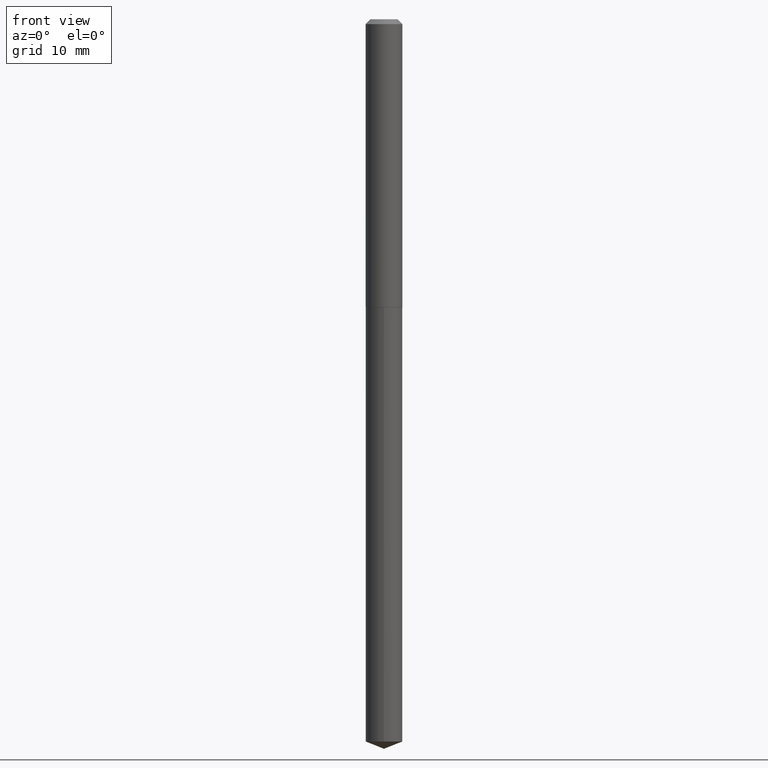
[diagram: clean part render]
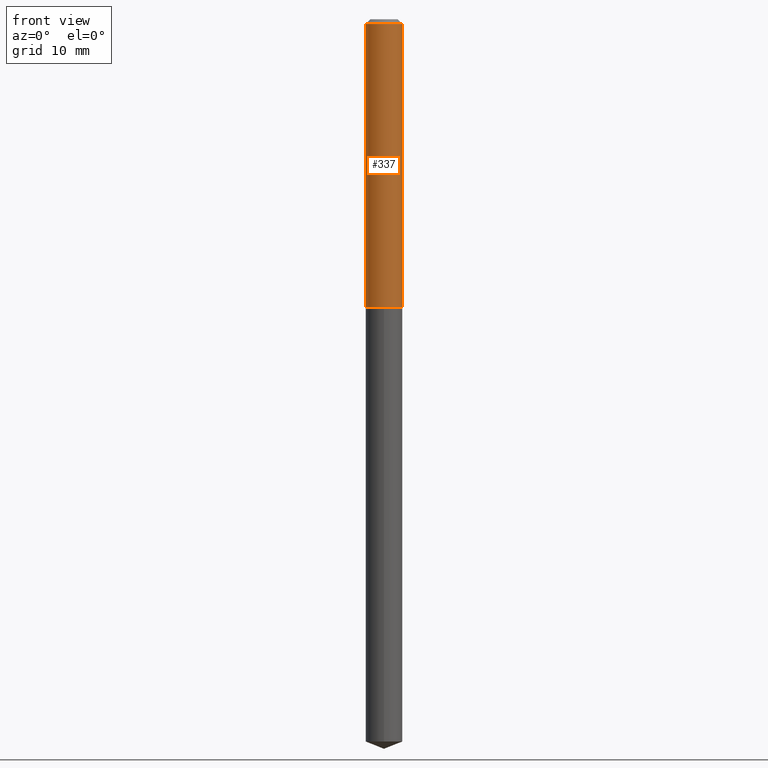
[diagram: same view with one face highlighted and labeled with its STEP entity id]
A machine part, front view. The second image highlights one B-rep face of the part: STEP entity #337.
In plain terms, the highlighted cylindrical surface (edge-blend (fillet) strip) has radius 2.9997 mm, axis along (-0, 0, 1).
Its self-contained STEP definition (entity closure, byte-faithful):
#6 = AXIS2_PLACEMENT_3D ( 'NONE', #117, #126, #242 ) ;
#24 = VERTEX_POINT ( 'NONE', #349 ) ;
#26 = ORIENTED_EDGE ( 'NONE', *, *, #341, .F. ) ;
#34 = DIRECTION ( 'NONE',  ( 1.000000000000000000, -6.982962677686266711E-15, 0.000000000000000000 ) ) ;
#48 = AXIS2_PLACEMENT_3D ( 'NONE', #183, #94, #34 ) ;
#67 = DIRECTION ( 'NONE',  ( 1.000000000000000000, -6.982962677686266711E-15, 4.876176775795935793E-29 ) ) ;
#82 = CARTESIAN_POINT ( 'NONE',  ( -0.1180999999999999966, -2.444674515282768295E-15, -0.03125000000000021511 ) ) ;
#90 = FACE_OUTER_BOUND ( 'NONE', #111, .T. ) ;
#94 = DIRECTION ( 'NONE',  ( -2.445468806185136597E-29, 3.491481338843145583E-15, 1.000000000000000000 ) ) ;
#103 = AXIS2_PLACEMENT_3D ( 'NONE', #204, #332, #67 ) ;
#106 = VERTEX_POINT ( 'NONE', #82 ) ;
#111 = EDGE_LOOP ( 'NONE', ( #191, #347, #381, #26 ) ) ;
#117 = CARTESIAN_POINT ( 'NONE',  ( 4.523628197681264126E-29, -6.458542180592047827E-15, -1.849799999999999223 ) ) ;
#121 = DIRECTION ( 'NONE',  ( -2.445468806185136877E-29, 3.491481338843145188E-15, 1.000000000000000000 ) ) ;
#126 = DIRECTION ( 'NONE',  ( -2.445468806185136597E-29, 3.491481338843145583E-15, 1.000000000000000000 ) ) ;
#130 = LINE ( 'NONE', #364, #223 ) ;
#132 = VERTEX_POINT ( 'NONE', #259 ) ;
#141 = CIRCLE ( 'NONE', #48, 0.1180999999999999966 ) ;
#164 = EDGE_CURVE ( 'NONE', #190, #132, #235, .T. ) ;
#183 = CARTESIAN_POINT ( 'NONE',  ( 7.642090019328603538E-31, -1.091087918388490390E-16, -0.03125000000000021511 ) ) ;
#184 = DIRECTION ( 'NONE',  ( -2.445468806185136877E-29, 3.491481338843145188E-15, 1.000000000000000000 ) ) ;
#185 = VECTOR ( 'NONE', #121, 39.37007874015748143 ) ;
#190 = VERTEX_POINT ( 'NONE', #201 ) ;
#191 = ORIENTED_EDGE ( 'NONE', *, *, #280, .F. ) ;
#201 = CARTESIAN_POINT ( 'NONE',  ( 0.1181000000000002048, -7.283230072826796879E-15, -1.849799999999999223 ) ) ;
#204 = CARTESIAN_POINT ( 'NONE',  ( 0.000000000000000000, 0.000000000000000000, 0.000000000000000000 ) ) ;
#223 = VECTOR ( 'NONE', #184, 39.37007874015748143 ) ;
#235 = LINE ( 'NONE', #366, #185 ) ;
#242 = DIRECTION ( 'NONE',  ( 1.000000000000000000, -6.982962677686268288E-15, 0.000000000000000000 ) ) ;
#259 = CARTESIAN_POINT ( 'NONE',  ( 0.1180999999999999966, -9.337966840735971660E-16, -0.03125000000000021511 ) ) ;
#268 = EDGE_CURVE ( 'NONE', #24, #190, #368, .T. ) ;
#280 = EDGE_CURVE ( 'NONE', #24, #106, #130, .T. ) ;
#332 = DIRECTION ( 'NONE',  ( -2.445468806185136597E-29, 3.491481338843145583E-15, 1.000000000000000000 ) ) ;
#335 = CYLINDRICAL_SURFACE ( 'NONE', #103, 0.1181000000000001077 ) ;
#337 = ADVANCED_FACE ( 'NONE', ( #90 ), #335, .T. ) ;
#341 = EDGE_CURVE ( 'NONE', #106, #132, #141, .T. ) ;
#347 = ORIENTED_EDGE ( 'NONE', *, *, #268, .T. ) ;
#349 = CARTESIAN_POINT ( 'NONE',  ( -0.1181000000000002048, -5.619391209659368053E-15, -1.849799999999999223 ) ) ;
#364 = CARTESIAN_POINT ( 'NONE',  ( -0.1181000000000001077, 8.391509709326790846E-16, -5.809262341591049389E-30 ) ) ;
#366 = CARTESIAN_POINT ( 'NONE',  ( 0.1181000000000001077, -8.246878922347488542E-16, 5.758764772215005345E-30 ) ) ;
#368 = CIRCLE ( 'NONE', #6, 0.1181000000000002048 ) ;
#381 = ORIENTED_EDGE ( 'NONE', *, *, #164, .T. ) ;